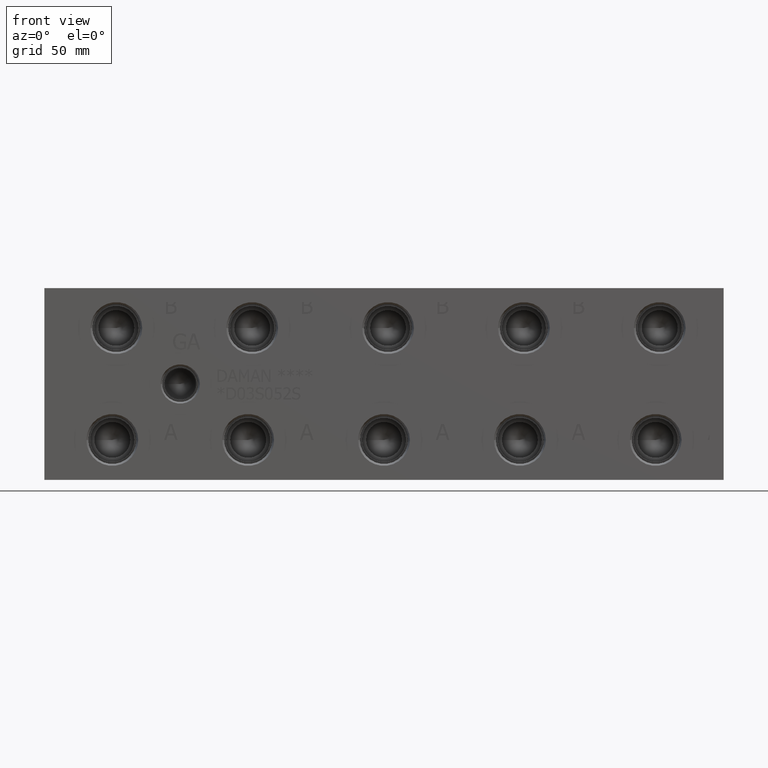
[diagram: clean part render]
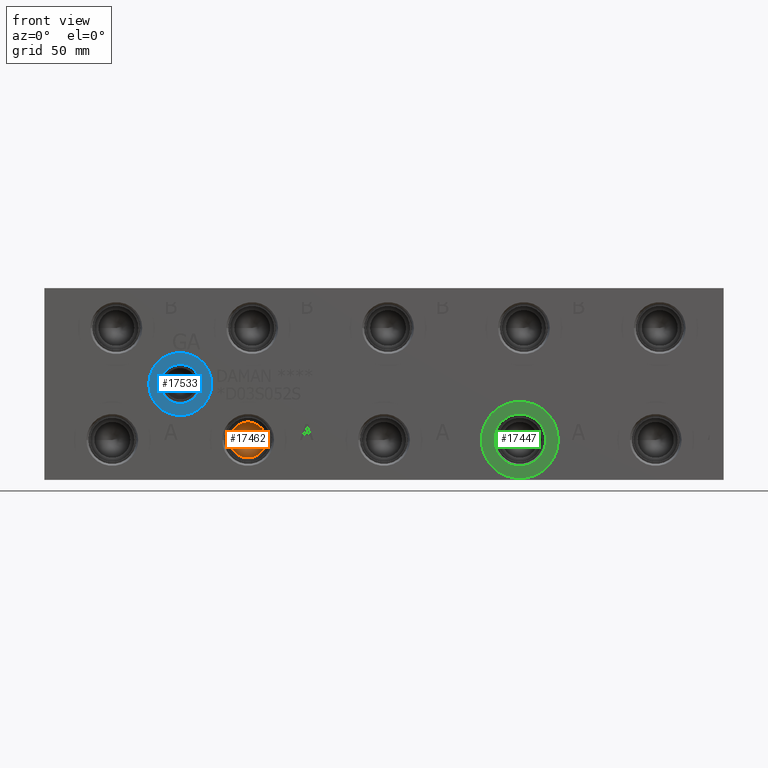
[diagram: same view with three faces highlighted in distinct colors, each labeled with its STEP entity id]
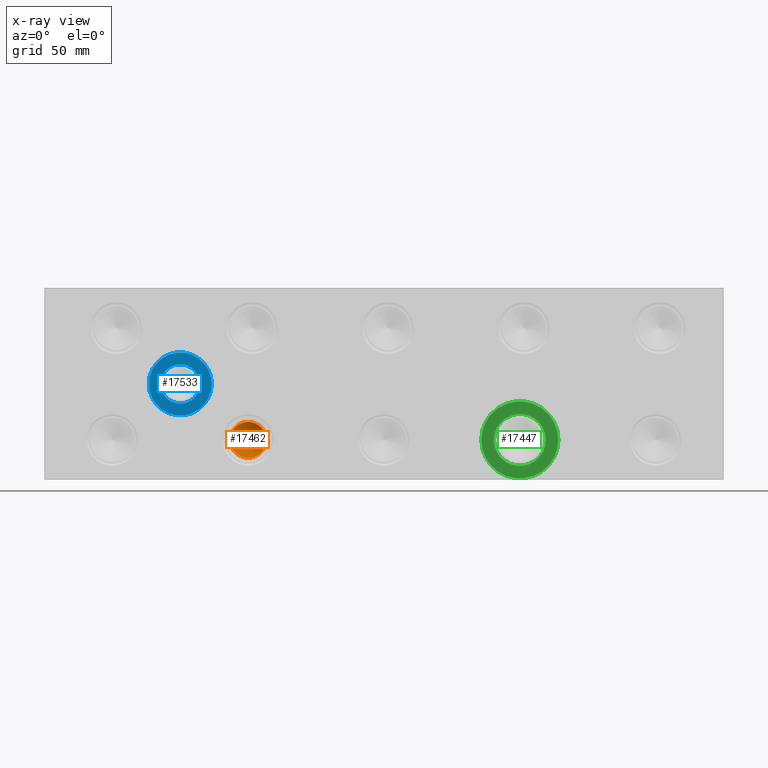
[diagram: x-ray of the same camera — body ghosted, the three highlighted faces saturated]
A machine part, front view with three faces highlighted in distinct colors.
The next image is the same camera in x-ray (body ghosted, the three faces saturated) — at least one of them is partly hidden behind the body in this view.
Their STEP definitions:

[orange] entity #17462 — the highlighted conical surface has half-angle 60 deg.
#33=CONICAL_SURFACE('',#18307,3.57505,1.0471975511966);
#396=CIRCLE('',#18308,7.1501);
#397=CIRCLE('',#18309,7.1501);
#2305=FACE_OUTER_BOUND('',#3317,.T.);
#3317=EDGE_LOOP('',(#14394,#14395,#14396,#14397));
#4941=LINE('',#29523,#6424);
#6424=VECTOR('',#21392,3.57505);
#7873=VERTEX_POINT('',#29519);
#7874=VERTEX_POINT('',#29520);
#7875=VERTEX_POINT('',#29522);
#10177=EDGE_CURVE('',#7873,#7874,#396,.T.);
#10178=EDGE_CURVE('',#7874,#7875,#4941,.T.);
#10179=EDGE_CURVE('',#7874,#7873,#397,.T.);
#14394=ORIENTED_EDGE('',*,*,#10177,.T.);
#14395=ORIENTED_EDGE('',*,*,#10178,.T.);
#14396=ORIENTED_EDGE('',*,*,#10178,.F.);
#14397=ORIENTED_EDGE('',*,*,#10179,.T.);
#17462=ADVANCED_FACE('',(#2305),#33,.F.);
#18307=AXIS2_PLACEMENT_3D('',#29518,#21388,#21389);
#18308=AXIS2_PLACEMENT_3D('',#29521,#21390,#21391);
#18309=AXIS2_PLACEMENT_3D('',#29524,#21393,#21394);
#21388=DIRECTION('center_axis',(0.,-1.,0.));
#21389=DIRECTION('ref_axis',(1.,0.,0.));
#21390=DIRECTION('center_axis',(0.,-1.,0.));
#21391=DIRECTION('ref_axis',(1.,0.,0.));
#21392=DIRECTION('',(0.866025403784439,0.5,1.06057523872491E-16));
#21393=DIRECTION('center_axis',(0.,-1.,0.));
#21394=DIRECTION('ref_axis',(1.,0.,0.));
#29518=CARTESIAN_POINT('Origin',(80.9498,25.1829360798664,15.875));
#29519=CARTESIAN_POINT('',(88.0999,23.11888,15.875));
#29520=CARTESIAN_POINT('',(73.7997,23.11888,15.875));
#29521=CARTESIAN_POINT('Origin',(80.9498,23.11888,15.875));
#29522=CARTESIAN_POINT('',(80.9498,27.2469921597327,15.875));
#29523=CARTESIAN_POINT('',(77.37475,25.1829360798664,15.875));
#29524=CARTESIAN_POINT('Origin',(80.9498,23.11888,15.875));

[blue] entity #17533 — the highlighted planar face has unit normal (0, 1, 0).
#494=CIRCLE('',#18476,12.5095);
#495=CIRCLE('',#18477,12.5095);
#496=CIRCLE('',#18479,7.7978);
#497=CIRCLE('',#18480,7.7978);
#932=FACE_BOUND('',#3402,.T.);
#2376=FACE_OUTER_BOUND('',#3401,.T.);
#3401=EDGE_LOOP('',(#14724,#14725));
#3402=EDGE_LOOP('',(#14726,#14727));
#7979=VERTEX_POINT('',#29850);
#7980=VERTEX_POINT('',#29852);
#7981=VERTEX_POINT('',#29856);
#7982=VERTEX_POINT('',#29857);
#10333=EDGE_CURVE('',#7979,#7980,#494,.T.);
#10334=EDGE_CURVE('',#7980,#7979,#495,.T.);
#10335=EDGE_CURVE('',#7981,#7982,#496,.T.);
#10336=EDGE_CURVE('',#7982,#7981,#497,.T.);
#14724=ORIENTED_EDGE('',*,*,#10334,.F.);
#14725=ORIENTED_EDGE('',*,*,#10333,.F.);
#14726=ORIENTED_EDGE('',*,*,#10335,.T.);
#14727=ORIENTED_EDGE('',*,*,#10336,.T.);
#16192=PLANE('',#18478);
#17533=ADVANCED_FACE('',(#2376,#932),#16192,.F.);
#18476=AXIS2_PLACEMENT_3D('',#29853,#21784,#21785);
#18477=AXIS2_PLACEMENT_3D('',#29854,#21786,#21787);
#18478=AXIS2_PLACEMENT_3D('',#29855,#21788,#21789);
#18479=AXIS2_PLACEMENT_3D('',#29858,#21790,#21791);
#18480=AXIS2_PLACEMENT_3D('',#29859,#21792,#21793);
#21784=DIRECTION('center_axis',(0.,1.,0.));
#21785=DIRECTION('ref_axis',(1.,0.,0.));
#21786=DIRECTION('center_axis',(0.,1.,0.));
#21787=DIRECTION('ref_axis',(1.,0.,0.));
#21788=DIRECTION('center_axis',(0.,1.,0.));
#21789=DIRECTION('ref_axis',(0.,0.,1.));
#21790=DIRECTION('center_axis',(0.,1.,0.));
#21791=DIRECTION('ref_axis',(1.,0.,0.));
#21792=DIRECTION('center_axis',(0.,1.,0.));
#21793=DIRECTION('ref_axis',(1.,0.,0.));
#29850=CARTESIAN_POINT('',(41.4655,0.7874,38.1));
#29852=CARTESIAN_POINT('',(66.4845,0.7874,38.1));
#29853=CARTESIAN_POINT('Origin',(53.975,0.7874,38.1));
#29854=CARTESIAN_POINT('Origin',(53.975,0.7874,38.1));
#29855=CARTESIAN_POINT('Origin',(61.7728,0.7874,38.1));
#29856=CARTESIAN_POINT('',(61.7728,0.7874,38.1));
#29857=CARTESIAN_POINT('',(46.1772,0.787399999999999,38.1));
#29858=CARTESIAN_POINT('Origin',(53.975,0.7874,38.1));
#29859=CARTESIAN_POINT('Origin',(53.975,0.7874,38.1));

[green] entity #17447 — the highlighted planar face has unit normal (0, 1, 0).
#369=CIRCLE('',#18265,15.3162);
#370=CIRCLE('',#18266,15.3162);
#371=CIRCLE('',#18268,10.2997);
#372=CIRCLE('',#18269,10.2997);
#917=FACE_BOUND('',#3301,.T.);
#2290=FACE_OUTER_BOUND('',#3300,.T.);
#3300=EDGE_LOOP('',(#14319,#14320));
#3301=EDGE_LOOP('',(#14321,#14322));
#7843=VERTEX_POINT('',#29432);
#7844=VERTEX_POINT('',#29434);
#7845=VERTEX_POINT('',#29438);
#7846=VERTEX_POINT('',#29439);
#10137=EDGE_CURVE('',#7843,#7844,#369,.T.);
#10138=EDGE_CURVE('',#7844,#7843,#370,.T.);
#10139=EDGE_CURVE('',#7845,#7846,#371,.T.);
#10140=EDGE_CURVE('',#7846,#7845,#372,.T.);
#14319=ORIENTED_EDGE('',*,*,#10138,.F.);
#14320=ORIENTED_EDGE('',*,*,#10137,.F.);
#14321=ORIENTED_EDGE('',*,*,#10139,.T.);
#14322=ORIENTED_EDGE('',*,*,#10140,.T.);
#16177=PLANE('',#18267);
#17447=ADVANCED_FACE('',(#2290,#917),#16177,.F.);
#18265=AXIS2_PLACEMENT_3D('',#29435,#21291,#21292);
#18266=AXIS2_PLACEMENT_3D('',#29436,#21293,#21294);
#18267=AXIS2_PLACEMENT_3D('',#29437,#21295,#21296);
#18268=AXIS2_PLACEMENT_3D('',#29440,#21297,#21298);
#18269=AXIS2_PLACEMENT_3D('',#29441,#21299,#21300);
#21291=DIRECTION('center_axis',(0.,1.,0.));
#21292=DIRECTION('ref_axis',(1.,0.,0.));
#21293=DIRECTION('center_axis',(0.,1.,0.));
#21294=DIRECTION('ref_axis',(1.,0.,0.));
#21295=DIRECTION('center_axis',(0.,1.,0.));
#21296=DIRECTION('ref_axis',(0.,0.,1.));
#21297=DIRECTION('center_axis',(0.,1.,0.));
#21298=DIRECTION('ref_axis',(1.,0.,0.));
#21299=DIRECTION('center_axis',(0.,1.,0.));
#21300=DIRECTION('ref_axis',(1.,0.,0.));
#29432=CARTESIAN_POINT('',(173.5836,0.7874,15.875));
#29434=CARTESIAN_POINT('',(204.216,0.7874,15.875));
#29435=CARTESIAN_POINT('Origin',(188.8998,0.7874,15.875));
#29436=CARTESIAN_POINT('Origin',(188.8998,0.7874,15.875));
#29437=CARTESIAN_POINT('Origin',(199.1995,0.7874,15.875));
#29438=CARTESIAN_POINT('',(199.1995,0.7874,15.875));
#29439=CARTESIAN_POINT('',(178.6001,0.787399999999999,15.875));
#29440=CARTESIAN_POINT('Origin',(188.8998,0.7874,15.875));
#29441=CARTESIAN_POINT('Origin',(188.8998,0.7874,15.875));